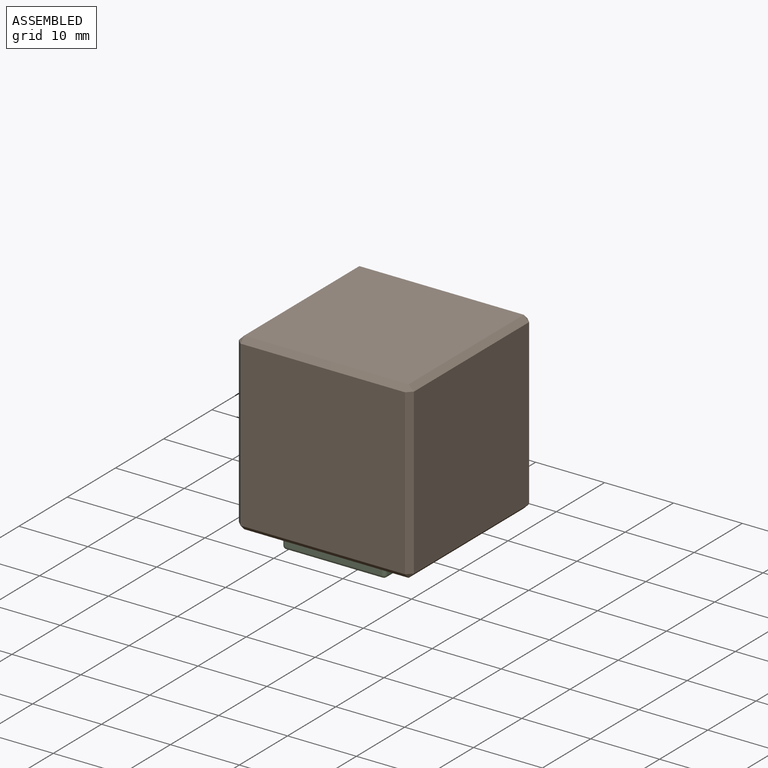
[diagram: assembled view]
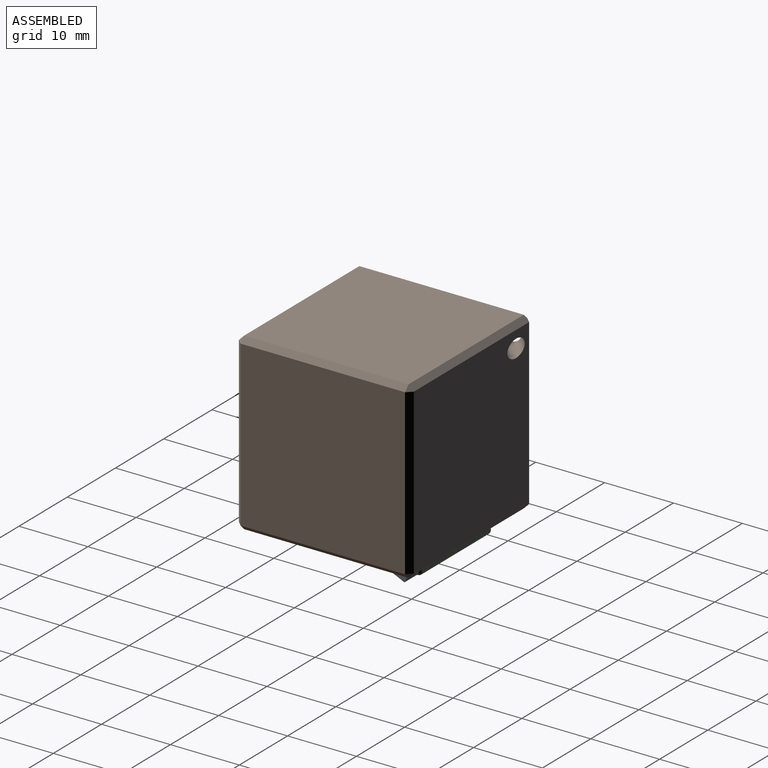
[diagram: assembled view, second angle]
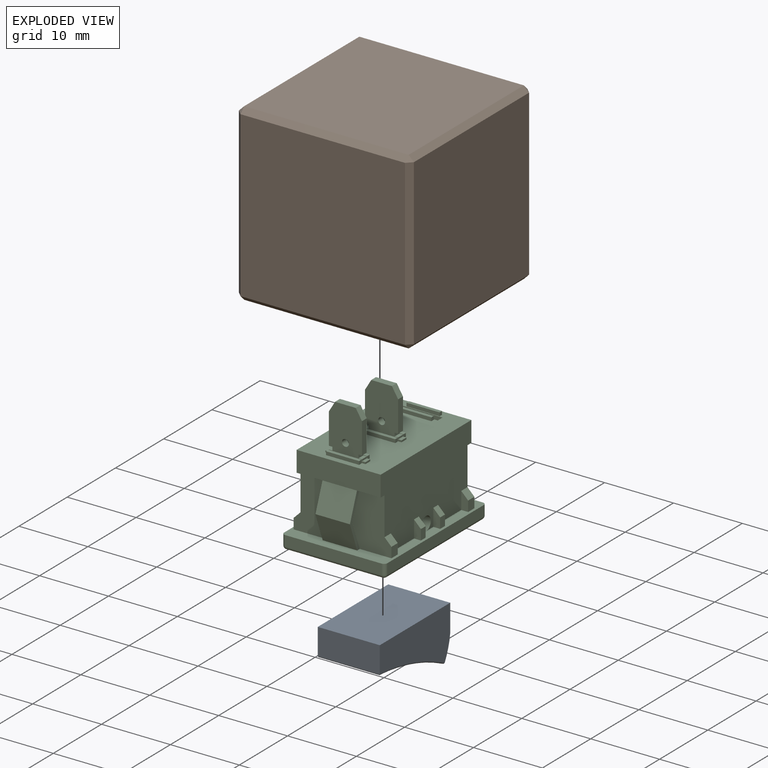
[diagram: exploded view]
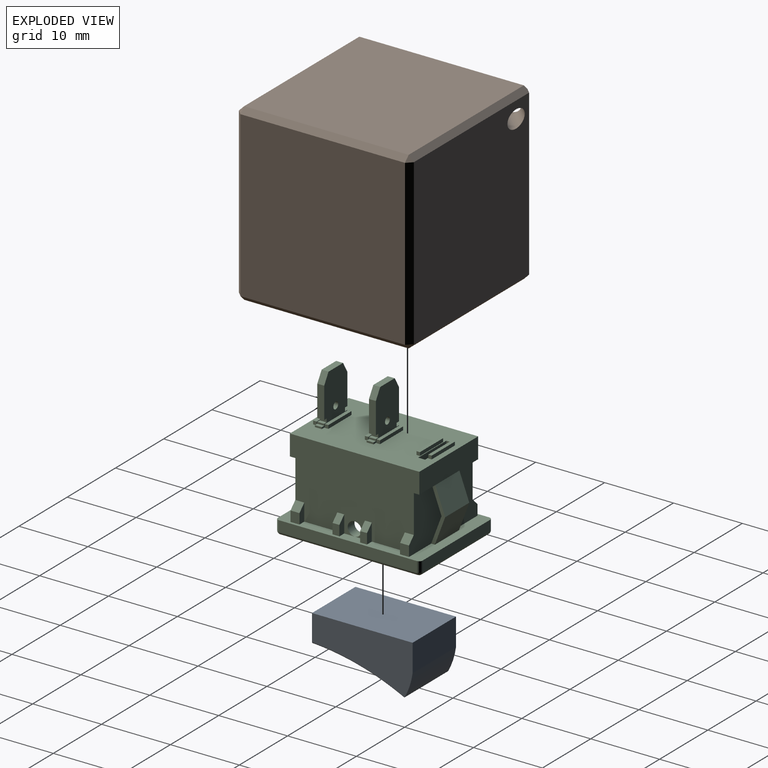
[diagram: exploded view, second angle]
ASSEMBLY  parts=3 mates=2
PART A: 11 faces, bbox 14.7x7.7x9 mm
  f0: cylinder r=0.2mm len=9mm, axis (0,0,-1), area 2.6mm2, adj f1,f2,f3,f4
  f1: bspline ~13.65x3.88mm, area 4.4mm2, adj f0,f2,f3,f7,f8,f10
  f2: cylinder r=35mm len=13.02mm, axis (0,0,-1), area 116.7mm2, adj f0,f1,f4,f8
  f3: plane 9x3.81mm, normal (1,0,0), area 34.3mm2, adj f0,f1,f4,f5,f7,f9
  f4: bspline ~13.65x3.88mm, area 4.4mm2, adj f0,f2,f3,f8,f9,f10
  f5: plane 14.6x9mm, normal (0,-1,0), area 131.4mm2, adj f3,f6,f7,f9
  f6: plane 9x4mm, normal (-1,0,0), area 36mm2, adj f5,f7,f9,f10
  f7: plane 14.61x7.43mm, normal (0,0,-1), area 75.9mm2, adj f1,f3,f5,f6,f10
  f8: cylinder r=0.2mm len=9mm, axis (0,0,1), area 2.7mm2, adj f1,f2,f4,f10
  f9: plane 14.61x7.43mm, normal (0,0,1), area 75.9mm2, adj f3,f4,f5,f6,f10
  f10: cylinder r=10mm len=9mm, axis (0,0,-1), area 32.7mm2, adj f1,f4,f6,f7,f8,f9
PART B: 54 faces, bbox 27.7x27.7x25.9 mm
  f0: plane 23.88x23.88mm, normal (0,0,-1), area 301.8mm2, adj f1,f2,f3,f4,f18,f23,f26,f29
  f1: plane 8.07x1.52mm, normal (-1,0,0), area 12.3mm2, adj f0,f31,f49,f50
  f2: plane 4.72x1.52mm, normal (0,-1,0), area 7.2mm2, adj f0,f31,f50,f51
  f3: plane 8.07x1.52mm, normal (1,0,0), area 12.3mm2, adj f0,f31,f51,f52
  f4: plane 4.72x1.52mm, normal (0,1,0), area 7.2mm2, adj f0,f31,f49,f52
  f5: plane 24.41x24.41mm, normal (0,1,0), area 562.9mm2, adj f15,f24,f25,f29,f53
  f6: plane 23.88x23.88mm, normal (-1,0,0), area 562.9mm2, adj f16,f17,f25,f26,f53
  f7: plane 23.88x23.88mm, normal (0,-1,0), area 570.1mm2, adj f10,f13,f17,f18
  f8: plane 23.88x23.88mm, normal (1,0,0), area 570.1mm2, adj f13,f14,f23,f24
  f9: plane 23.88x23.88mm, normal (0,0,1), area 570.1mm2, adj f10,f14,f15,f16
  f10: plane 23.88x0.76mm, normal (0,-0.71,0.71), area 25.7mm2, adj f7,f9,f11,f12
  f11: plane 0.76x0.76mm, normal (0.58,-0.58,0.58), area 0.5mm2, adj f10,f13,f14
  f12: plane 0.76x0.76mm, normal (-0.58,-0.58,0.58), area 0.5mm2, adj f10,f16,f17
  f13: plane 23.88x0.76mm, normal (0.71,-0.71,0), area 25.7mm2, adj f7,f8,f11,f19
  f14: plane 23.88x0.76mm, normal (0.71,0,0.71), area 25.7mm2, adj f8,f9,f11,f20
  f15: plane 23.88x0.76mm, normal (0,0.71,0.71), area 25.7mm2, adj f5,f9,f20,f21
  f16: plane 23.88x0.76mm, normal (-0.71,0,0.71), area 25.7mm2, adj f6,f9,f12,f21
  f17: plane 23.88x0.76mm, normal (-0.71,-0.71,0), area 25.7mm2, adj f6,f7,f12,f22
  f18: plane 23.88x0.76mm, normal (0,-0.71,-0.71), area 25.7mm2, adj f0,f7,f19,f22
  f19: plane 0.76x0.76mm, normal (0.58,-0.58,-0.58), area 0.5mm2, adj f13,f18,f23
  f20: plane 0.76x0.76mm, normal (0.58,0.58,0.58), area 0.5mm2, adj f14,f15,f24
  f21: plane 0.76x0.76mm, normal (-0.58,0.58,0.58), area 0.5mm2, adj f15,f16,f25
  f22: plane 0.76x0.76mm, normal (-0.58,-0.58,-0.58), area 0.5mm2, adj f17,f18,f26
  f23: plane 23.88x0.76mm, normal (0.71,0,-0.71), area 25.7mm2, adj f0,f8,f19,f27
  f24: plane 23.88x0.76mm, normal (0.71,0.71,0), area 25.7mm2, adj f5,f8,f20,f27
  f25: plane 23.88x0.76mm, normal (-0.71,0.71,0), area 25.7mm2, adj f5,f6,f21,f28
  f26: plane 23.88x0.76mm, normal (-0.71,0,-0.71), area 25.7mm2, adj f0,f6,f22,f28
  f27: plane 0.76x0.76mm, normal (0.58,0.58,-0.58), area 0.5mm2, adj f23,f24,f29
  f28: plane 0.76x0.76mm, normal (-0.58,0.58,-0.58), area 0.5mm2, adj f25,f26,f29
  f29: plane 23.88x0.76mm, normal (0,0.71,-0.71), area 25.7mm2, adj f0,f5,f27,f28
  f30: plane 23.21x16.81mm, normal (0,0,-1), area 111mm2, adj f32,f33,f34,f35,f37,f38,f39,f40
  f31: plane 23.21x16.81mm, normal (0,0,1), area 111mm2, adj f1,f2,f3,f4,f32,f33,f34,f35
  f32: plane 9.7x6.1mm, normal (0,-1,0), area 59.1mm2, adj f30,f31,f41,f44
  f33: plane 16.1x6.1mm, normal (1,0,0), area 98.1mm2, adj f30,f31,f42,f44
  f34: plane 9.7x6.1mm, normal (0,1,0), area 59.1mm2, adj f30,f31,f42,f43
  f35: plane 16.1x6.1mm, normal (-1,0,0), area 98.1mm2, adj f30,f31,f41,f43
  f36: plane 20.16x15.03mm, normal (0,0,-1), area 268.3mm2, adj f37,f38,f39,f40,f45,f46,f47,f48
  f37: plane 11.43x4.72mm, normal (0,1,0), area 53.9mm2, adj f30,f36,f45,f48
  f38: plane 11.43x8.07mm, normal (1,0,0), area 92.3mm2, adj f30,f36,f47,f48
  f39: plane 11.43x4.72mm, normal (0,-1,0), area 53.9mm2, adj f30,f36,f46,f47
  f40: plane 11.43x8.07mm, normal (-1,0,0), area 92.3mm2, adj f30,f36,f45,f46
  f41: cylinder r=3.56mm len=6.1mm, axis (0,0,1), area 34.1mm2, adj f30,f31,f32,f35
  f42: cylinder r=3.56mm len=6.1mm, axis (0,0,1), area 34.1mm2, adj f30,f31,f33,f34
  f43: cylinder r=3.56mm len=6.1mm, axis (0,0,-1), area 34.1mm2, adj f30,f31,f34,f35
  f44: cylinder r=3.56mm len=6.1mm, axis (0,0,-1), area 34.1mm2, adj f30,f31,f32,f33
  f45: cylinder r=3.56mm len=11.43mm, axis (0,0,-1), area 114.3mm2, adj f30,f36,f37,f40
  f46: cylinder r=3.56mm len=11.43mm, axis (0,0,-1), area 114.3mm2, adj f30,f36,f39,f40
  f47: cylinder r=3.56mm len=11.43mm, axis (0,0,-1), area 114.3mm2, adj f30,f36,f38,f39
  f48: cylinder r=3.56mm len=11.43mm, axis (0,0,-1), area 114.3mm2, adj f30,f36,f37,f38
  f49: cylinder r=3.56mm len=6.04mm, axis (0,0,-1), area 15.2mm2, adj f0,f1,f4,f31
  f50: cylinder r=3.56mm len=6.04mm, axis (0,0,-1), area 15.2mm2, adj f0,f1,f2,f31
  f51: cylinder r=3.56mm len=6.04mm, axis (0,0,-1), area 15.2mm2, adj f0,f2,f3,f31
  f52: cylinder r=3.56mm len=6.04mm, axis (0,0,-1), area 15.2mm2, adj f0,f3,f4,f31
  f53: cylinder r=1.27mm len=7.06mm, axis (0.71,0.71,0), area 39mm2, adj f5,f6
PART C: 152 faces, bbox 21.3x20x15 mm
  f0: revolved ~0.22x0.22mm, area 0mm2, adj f1,f151
  f1: cylinder r=0.5mm len=20mm, axis (1,0,0), area 15.7mm2, adj f0,f2,f148,f149,f150
  f2: revolved ~1x1mm, area 0.4mm2, adj f1,f3,f147
  f3: cylinder r=0.5mm len=14mm, axis (0,0,-1), area 11mm2, adj f2,f4,f146,f150
  f4: revolved ~0.5x0.5mm, area 0.4mm2, adj f3,f5,f145
  f5: cylinder r=0.5mm len=1.5mm, axis (0,-1,0), area 1.2mm2, adj f4,f6,f13,f146
  f6: plane 20x1.5mm, normal (0,0,-1), area 30mm2, adj f5,f7,f13,f145
  f7: cylinder r=0.5mm len=1.5mm, axis (0,-1,0), area 1.2mm2, adj f6,f8,f9,f10,f12,f13
  f8: revolved ~0.08x0.05mm, area 0mm2, adj f7,f145
  f9: revolved ~0.27x0.26mm, area 0mm2, adj f7,f145
  f10: plane 14x1.5mm, normal (-1,0,0), area 21mm2, adj f7,f11,f13,f151
  f11: cylinder r=0.5mm len=14mm, axis (0,0,1), area 11mm2, adj f10,f12,f149,f150
  f12: revolved ~0.55x0.5mm, area 0.4mm2, adj f7,f11,f145
  f13: plane 21x15mm, normal (0,-1,0), area 90.4mm2, adj f5,f6,f7,f10,f14,f16,f17,f18
  f14: plane 2.5x1mm, normal (-1,0,0), area 2mm2, adj f13,f15,f16,f144
  f15: plane 1x1mm, normal (0,-0.71,-0.71), area 1.4mm2, adj f14,f16,f17,f144
  f16: plane 1.5x1mm, normal (0,0,-1), area 1.5mm2, adj f13,f14,f15,f17
  f17: plane 2.5x1mm, normal (1,0,0), area 2mm2, adj f13,f15,f16,f144
  f18: plane 2.5x1mm, normal (-1,0,0), area 2mm2, adj f13,f19,f20,f144
  f19: plane 1.3x1mm, normal (0,-0.71,-0.71), area 1.8mm2, adj f18,f20,f108,f144
  f20: plane 1.5x1.3mm, normal (0,0,-1), area 1.9mm2, adj f13,f18,f19,f108
  f21: plane 8x2.03mm, normal (0,0,-1), area 4.3mm2, adj f13,f22,f103,f104,f105,f106
  f22: plane 12.2x0.8mm, normal (0,1,0), area 7.1mm2, adj f21,f23,f103,f107,f108,f120,f144
  f23: plane 12.2x3mm, normal (1,0,0), area 36.6mm2, adj f22,f24,f120,f144
  f24: plane 18.8x12.2mm, normal (0,-1,0), area 197.6mm2, adj f23,f25,f28,f30,f31,f32,f33,f35
  f25: plane 12.2x3mm, normal (-1,0,0), area 36.6mm2, adj f24,f26,f120,f144
  f26: plane 12.2x0.8mm, normal (0,1,0), area 7.1mm2, adj f25,f27,f120,f131,f135,f136,f144
  f27: plane 5x4mm, normal (-0.94,-0.35,0), area 21.4mm2, adj f26,f131,f134,f135
  f28: plane 1x1mm, normal (0,0,-1), area 1mm2, adj f24,f29,f30,f32
  f29: plane 5.8x1mm, normal (0,-1,0), area 5.8mm2, adj f28,f30,f31,f32
  f30: plane 5.8x1mm, normal (1,0,0), area 5.8mm2, adj f24,f28,f29,f31
  f31: plane 1x1mm, normal (0,0,1), area 1mm2, adj f24,f29,f30,f32
  f32: plane 5.8x1mm, normal (-1,0,0), area 5.8mm2, adj f24,f28,f29,f31
  f33: plane 4.8x0.5mm, normal (1,0,0), area 2.4mm2, adj f24,f34,f35,f37
  f34: plane 4.8x0.5mm, normal (0,-1,0), area 2.4mm2, adj f33,f35,f36,f37
  f35: plane 0.5x0.5mm, normal (0,0,1), area 0.3mm2, adj f24,f33,f34,f36
  f36: plane 4.8x0.5mm, normal (-1,0,0), area 2.4mm2, adj f24,f34,f35,f37
  f37: plane 0.5x0.5mm, normal (0,0,-1), area 0.3mm2, adj f24,f33,f34,f36
  f38: plane 4.8x0.5mm, normal (1,0,0), area 2.4mm2, adj f24,f39,f40,f42
  f39: plane 4.8x0.5mm, normal (0,-1,0), area 2.4mm2, adj f38,f40,f41,f42
  f40: plane 0.5x0.5mm, normal (0,0,1), area 0.2mm2, adj f24,f38,f39,f41
  f41: plane 4.8x0.5mm, normal (-1,0,0), area 2.4mm2, adj f24,f39,f40,f42
  f42: plane 0.5x0.5mm, normal (0,0,-1), area 0.2mm2, adj f24,f38,f39,f41
  f43: plane 4.8x0.5mm, normal (-1,0,0), area 2.4mm2, adj f24,f44,f45,f47
  f44: plane 4.8x0.5mm, normal (0,-1,0), area 2.4mm2, adj f43,f45,f46,f47
  f45: plane 0.5x0.5mm, normal (0,0,-1), area 0.3mm2, adj f24,f43,f44,f46
  f46: plane 4.8x0.5mm, normal (1,0,0), area 2.4mm2, adj f24,f44,f45,f47
  f47: plane 0.5x0.5mm, normal (0,0,1), area 0.3mm2, adj f24,f43,f44,f46
  f48: plane 1x0.25mm, normal (0,0,-1), area 0.3mm2, adj f24,f49,f64,f67
  f49: plane 1x0.5mm, normal (0,-1,0), area 0.5mm2, adj f48,f50,f64,f67
  f50: plane 1x0.25mm, normal (0,0,-1), area 0.3mm2, adj f49,f51,f64,f67
  f51: plane 1x0.5mm, normal (0,-1,0), area 0.5mm2, adj f50,f52,f64,f67
  f52: plane 1x0.5mm, normal (0,0,-1), area 0.5mm2, adj f51,f53,f64,f67
  f53: plane 1x0.5mm, normal (0,1,0), area 0.5mm2, adj f52,f54,f64,f67
  f54: plane 4.5x1mm, normal (0,0,-1), area 4.5mm2, adj f53,f55,f64,f67
  f55: plane 1.5x1mm, normal (0,-0.51,-0.86), area 1.7mm2, adj f54,f56,f64,f67
  f56: plane 3x1mm, normal (0,-1,0), area 3mm2, adj f55,f57,f64,f67
  f57: plane 1.5x1mm, normal (0,-0.51,0.86), area 1.7mm2, adj f56,f58,f64,f67
  f58: plane 4.5x1mm, normal (0,0,1), area 4.5mm2, adj f57,f59,f64,f67
  f59: plane 1x0.5mm, normal (0,1,0), area 0.5mm2, adj f58,f60,f64,f67
  f60: plane 1x0.5mm, normal (0,0,1), area 0.5mm2, adj f59,f61,f64,f67
  f61: plane 1x0.5mm, normal (0,-1,0), area 0.5mm2, adj f60,f62,f64,f67
  f62: plane 1x0.25mm, normal (0,0,1), area 0.3mm2, adj f61,f63,f64,f67
  f63: plane 1x0.5mm, normal (0,-1,0), area 0.5mm2, adj f62,f64,f66,f67
  f64: plane 7x5.8mm, normal (1,0,0), area 31.2mm2, adj f24,f48,f49,f50,f51,f52,f53,f54
  f65: cylinder r=0.5mm len=1mm, axis (-1,0,0), area 3.1mm2, adj f64,f67
  f66: plane 1x0.25mm, normal (0,0,1), area 0.3mm2, adj f24,f63,f64,f67
  f67: plane 7x5.8mm, normal (-1,0,0), area 31.2mm2, adj f24,f48,f49,f50,f51,f52,f53,f54
  f68: plane 4.8x0.5mm, normal (1,0,0), area 2.4mm2, adj f24,f69,f70,f72
  f69: plane 4.8x0.5mm, normal (0,-1,0), area 2.4mm2, adj f68,f70,f71,f72
  f70: plane 0.5x0.5mm, normal (0,0,1), area 0.3mm2, adj f24,f68,f69,f71
  f71: plane 4.8x0.5mm, normal (-1,0,0), area 2.4mm2, adj f24,f69,f70,f72
  f72: plane 0.5x0.5mm, normal (0,0,-1), area 0.3mm2, adj f24,f68,f69,f71
  f73: plane 1x0.25mm, normal (0,0,-1), area 0.3mm2, adj f24,f74,f89,f92
  f74: plane 1x0.5mm, normal (0,-1,0), area 0.5mm2, adj f73,f75,f89,f92
  f75: plane 1x0.25mm, normal (0,0,-1), area 0.3mm2, adj f74,f76,f89,f92
  f76: plane 1x0.5mm, normal (0,-1,0), area 0.5mm2, adj f75,f77,f89,f92
  f77: plane 1x0.5mm, normal (0,0,-1), area 0.5mm2, adj f76,f78,f89,f92
  f78: plane 1x0.5mm, normal (0,1,0), area 0.5mm2, adj f77,f79,f89,f92
  f79: plane 4.5x1mm, normal (0,0,-1), area 4.5mm2, adj f78,f80,f89,f92
  f80: plane 1.5x1mm, normal (0,-0.51,-0.86), area 1.7mm2, adj f79,f81,f89,f92
  f81: plane 3x1mm, normal (0,-1,0), area 3mm2, adj f80,f82,f89,f92
  f82: plane 1.5x1mm, normal (0,-0.51,0.86), area 1.7mm2, adj f81,f83,f89,f92
  f83: plane 4.5x1mm, normal (0,0,1), area 4.5mm2, adj f82,f84,f89,f92
  f84: plane 1x0.5mm, normal (0,1,0), area 0.5mm2, adj f83,f85,f89,f92
  f85: plane 1x0.5mm, normal (0,0,1), area 0.5mm2, adj f84,f86,f89,f92
  f86: plane 1x0.5mm, normal (0,-1,0), area 0.5mm2, adj f85,f87,f89,f92
  f87: plane 1x0.25mm, normal (0,0,1), area 0.3mm2, adj f86,f88,f89,f92
  f88: plane 1x0.5mm, normal (0,-1,0), area 0.5mm2, adj f87,f89,f91,f92
  f89: plane 7x5.8mm, normal (1,0,0), area 31.2mm2, adj f24,f73,f74,f75,f76,f77,f78,f79
  f90: cylinder r=0.5mm len=1mm, axis (-1,0,0), area 3.1mm2, adj f89,f92
  f91: plane 1x0.25mm, normal (0,0,1), area 0.3mm2, adj f24,f88,f89,f92
  f92: plane 7x5.8mm, normal (-1,0,0), area 31.2mm2, adj f24,f73,f74,f75,f76,f77,f78,f79
  f93: plane 4.8x0.5mm, normal (-1,0,0), area 2.4mm2, adj f24,f94,f95,f97
  f94: plane 4.8x0.5mm, normal (0,-1,0), area 2.4mm2, adj f93,f95,f96,f97
  f95: plane 0.5x0.5mm, normal (0,0,-1), area 0.3mm2, adj f24,f93,f94,f96
  f96: plane 4.8x0.5mm, normal (1,0,0), area 2.4mm2, adj f24,f94,f95,f97
  f97: plane 0.5x0.5mm, normal (0,0,1), area 0.3mm2, adj f24,f93,f94,f96
  f98: plane 4.8x0.5mm, normal (-1,0,0), area 2.4mm2, adj f24,f99,f100,f102
  f99: plane 4.8x0.5mm, normal (0,-1,0), area 2.4mm2, adj f98,f100,f101,f102
  f100: plane 0.5x0.5mm, normal (0,0,-1), area 0.2mm2, adj f24,f98,f99,f101
  f101: plane 4.8x0.5mm, normal (1,0,0), area 2.4mm2, adj f24,f99,f100,f102
  f102: plane 0.5x0.5mm, normal (0,0,1), area 0.2mm2, adj f24,f98,f99,f101
  f103: plane 5x4mm, normal (0.94,-0.35,0), area 21.4mm2, adj f21,f22,f106,f107
  f104: plane 5x4mm, normal (-0.94,-0.35,0), area 21.4mm2, adj f21,f105,f107,f108
  f105: plane 5x4mm, normal (-0.94,0.35,0), area 21.4mm2, adj f21,f104,f107,f108
  f106: plane 5x4mm, normal (0.94,0.35,0), area 21.4mm2, adj f13,f21,f103,f107
  f107: plane 8x2.03mm, normal (0,0,1), area 4.3mm2, adj f13,f22,f103,f104,f105,f106
  f108: plane 14.2x8mm, normal (1,0,0), area 101.6mm2, adj f13,f19,f20,f22,f104,f105,f109,f110
  f109: plane 1.3x1mm, normal (0,-0.71,0.71), area 1.8mm2, adj f108,f110,f111,f120
  f110: plane 1.5x1.3mm, normal (0,0,1), area 1.9mm2, adj f13,f108,f109,f111
  f111: plane 2.5x1mm, normal (-1,0,0), area 2mm2, adj f13,f109,f110,f120
  f112: plane 2.5x1mm, normal (1,0,0), area 2mm2, adj f13,f113,f114,f120
  f113: plane 1x1mm, normal (0,-0.71,0.71), area 1.4mm2, adj f112,f114,f115,f120
  f114: plane 1.5x1mm, normal (0,0,1), area 1.5mm2, adj f13,f112,f113,f115
  f115: plane 2.5x1mm, normal (-1,0,0), area 2mm2, adj f13,f113,f114,f120
  f116: plane 2.5x1mm, normal (1,0,0), area 2mm2, adj f13,f117,f118,f120
  f117: plane 1x1mm, normal (0,-0.71,0.71), area 1.4mm2, adj f116,f118,f119,f120
  f118: plane 1.5x1mm, normal (0,0,1), area 1.5mm2, adj f13,f116,f117,f119
  f119: plane 2.5x1mm, normal (-1,0,0), area 2mm2, adj f13,f117,f118,f120
  f120: plane 18.8x11mm, normal (0,0,1), area 179.4mm2, adj f13,f22,f23,f24,f25,f26,f108,f109
  f121: cylinder r=1mm len=2mm, axis (0,0,1), area 8.8mm2, adj f120,f122
  f122: plane 15x4.5mm, normal (0,0,-1), area 64.4mm2, adj f121,f123,f126,f127,f150
  f123: plane 9.4x4.5mm, normal (1,0,0), area 42.3mm2, adj f122,f124,f126,f150
  f124: plane 15x4.5mm, normal (0,0,1), area 64.4mm2, adj f123,f125,f126,f127,f150
  f125: cylinder r=1mm len=2mm, axis (0,0,-1), area 8.8mm2, adj f124,f144
  f126: plane 15x9.4mm, normal (0,1,0), area 141mm2, adj f122,f123,f124,f127
  f127: plane 9.4x4.5mm, normal (-1,0,0), area 42.3mm2, adj f122,f124,f126,f150
  f128: plane 1.3x1mm, normal (0,-0.71,0.71), area 1.8mm2, adj f120,f129,f130,f136
  f129: plane 2.5x1mm, normal (1,0,0), area 2mm2, adj f13,f120,f128,f130
  f130: plane 1.5x1.3mm, normal (0,0,1), area 1.9mm2, adj f13,f128,f129,f136
  f131: plane 8x2.03mm, normal (0,0,1), area 4.3mm2, adj f13,f26,f27,f132,f133,f134
  f132: plane 5x4mm, normal (0.94,-0.35,0), area 21.4mm2, adj f131,f133,f135,f136
  f133: plane 5x4mm, normal (0.94,0.35,0), area 21.4mm2, adj f131,f132,f135,f136
  f134: plane 5x4mm, normal (-0.94,0.35,0), area 21.4mm2, adj f13,f27,f131,f135
  f135: plane 8x2.03mm, normal (0,0,-1), area 4.3mm2, adj f13,f26,f27,f132,f133,f134
  f136: plane 14.2x8mm, normal (-1,0,0), area 101.6mm2, adj f13,f26,f120,f128,f130,f132,f133,f137
  f137: plane 1.3x1mm, normal (0,-0.71,-0.71), area 1.8mm2, adj f136,f138,f139,f144
  f138: plane 1.5x1.3mm, normal (0,0,-1), area 1.9mm2, adj f13,f136,f137,f139
  f139: plane 2.5x1mm, normal (1,0,0), area 2mm2, adj f13,f137,f138,f144
  f140: plane 2.5x1mm, normal (-1,0,0), area 2mm2, adj f13,f141,f142,f144
  f141: plane 1x1mm, normal (0,-0.71,-0.71), area 1.4mm2, adj f140,f142,f143,f144
  f142: plane 1.5x1mm, normal (0,0,-1), area 1.5mm2, adj f13,f140,f141,f143
  f143: plane 2.5x1mm, normal (1,0,0), area 2mm2, adj f13,f141,f142,f144
  f144: plane 18.8x11mm, normal (0,0,-1), area 179.4mm2, adj f13,f14,f15,f17,f18,f19,f22,f23
  f145: cylinder r=0.5mm len=20mm, axis (-1,0,0), area 15.7mm2, adj f4,f6,f8,f9,f12,f150
  f146: plane 14x1.5mm, normal (1,0,0), area 21mm2, adj f3,f5,f13,f147
  f147: cylinder r=0.5mm len=1.5mm, axis (0,-1,0), area 1.2mm2, adj f2,f13,f146,f148
  f148: plane 20x1.5mm, normal (0,0,1), area 30mm2, adj f1,f13,f147,f151
  f149: revolved ~1x1mm, area 0.4mm2, adj f1,f11,f151
  f150: plane 20x14mm, normal (0,1,0), area 139mm2, adj f1,f3,f11,f122,f123,f124,f127,f145
  f151: cylinder r=0.5mm len=1.5mm, axis (0,-1,0), area 1.2mm2, adj f0,f10,f13,f148,f149
PLACE A rot(axis=(-0.58,0.58,-0.58),120deg) t=(0,0,6)mm
PLACE B at identity fixed
PLACE C rot(axis=(-0.58,0.58,-0.58),120deg) t=(0,0,5.5)mm
MATE fastened B.f0 <-> C.f13  axis (0,0,-1) through (0,0,0)mm
MATE fastened C.f126 <-> A.f5  axis (0,0,-1) through (0,0,2.5)mm
